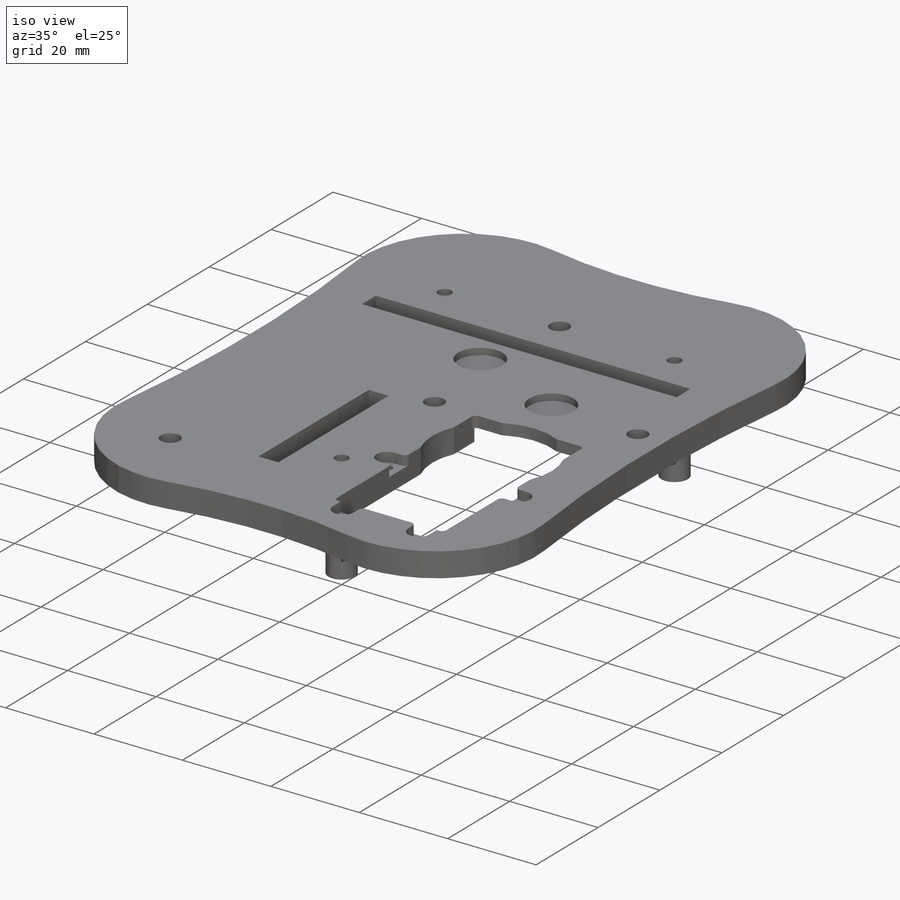
[diagram: iso view]
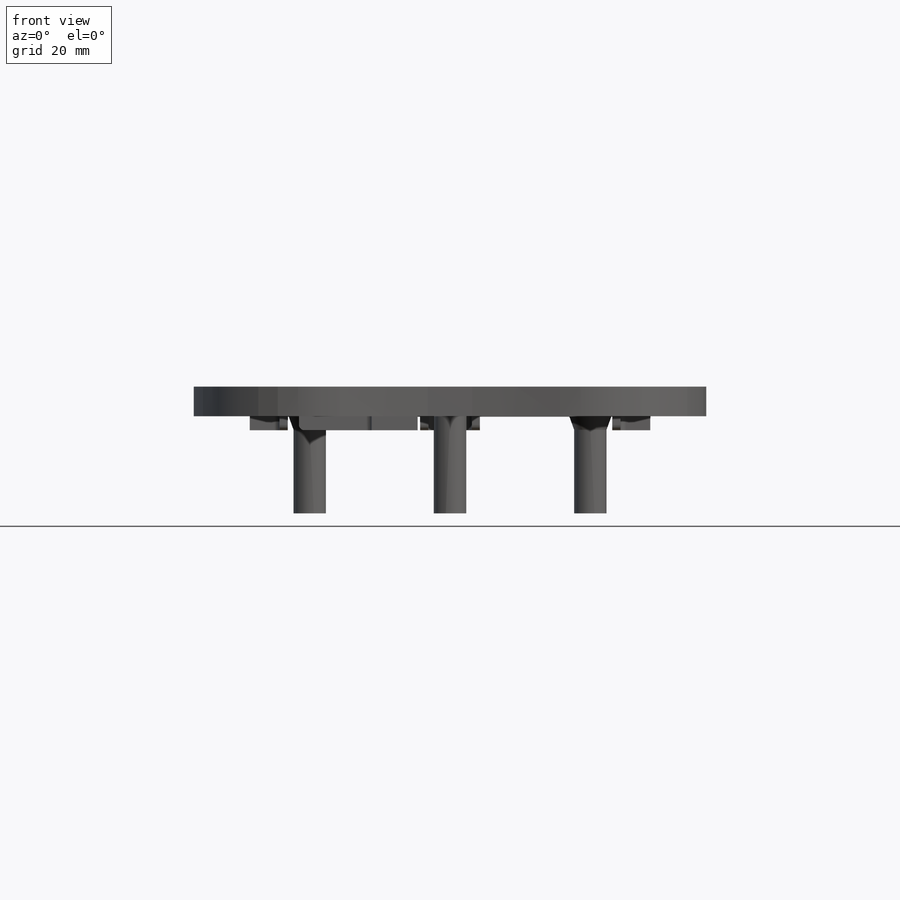
[diagram: front view]
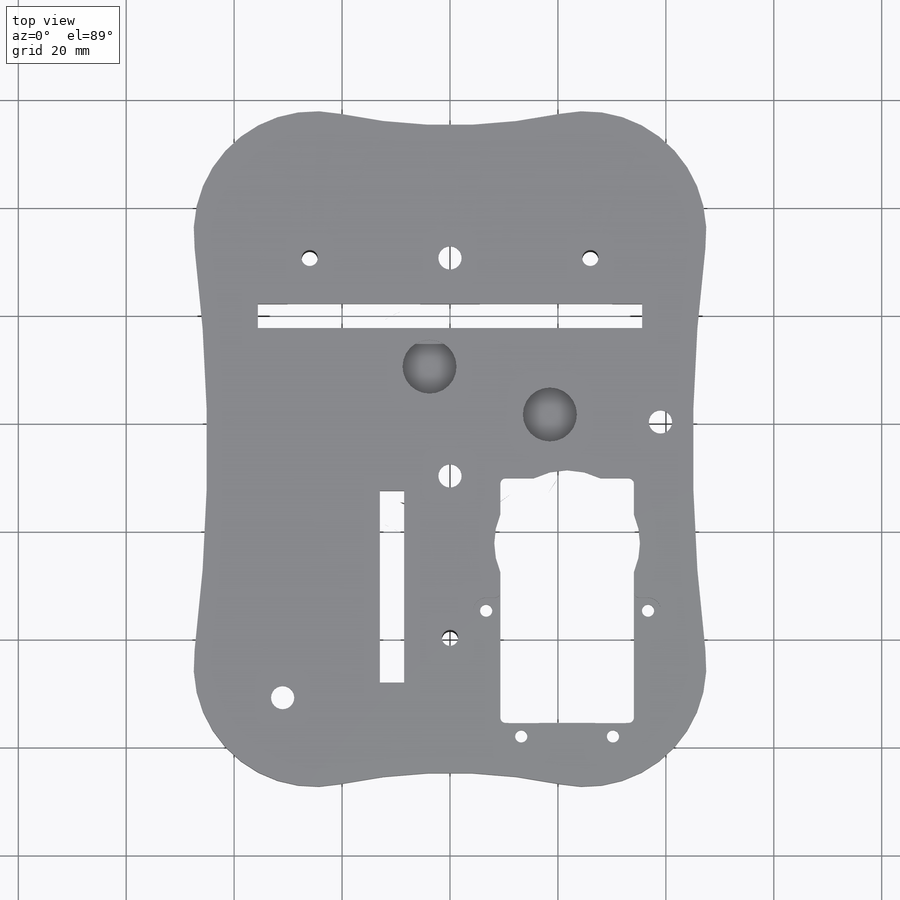
[diagram: top view]
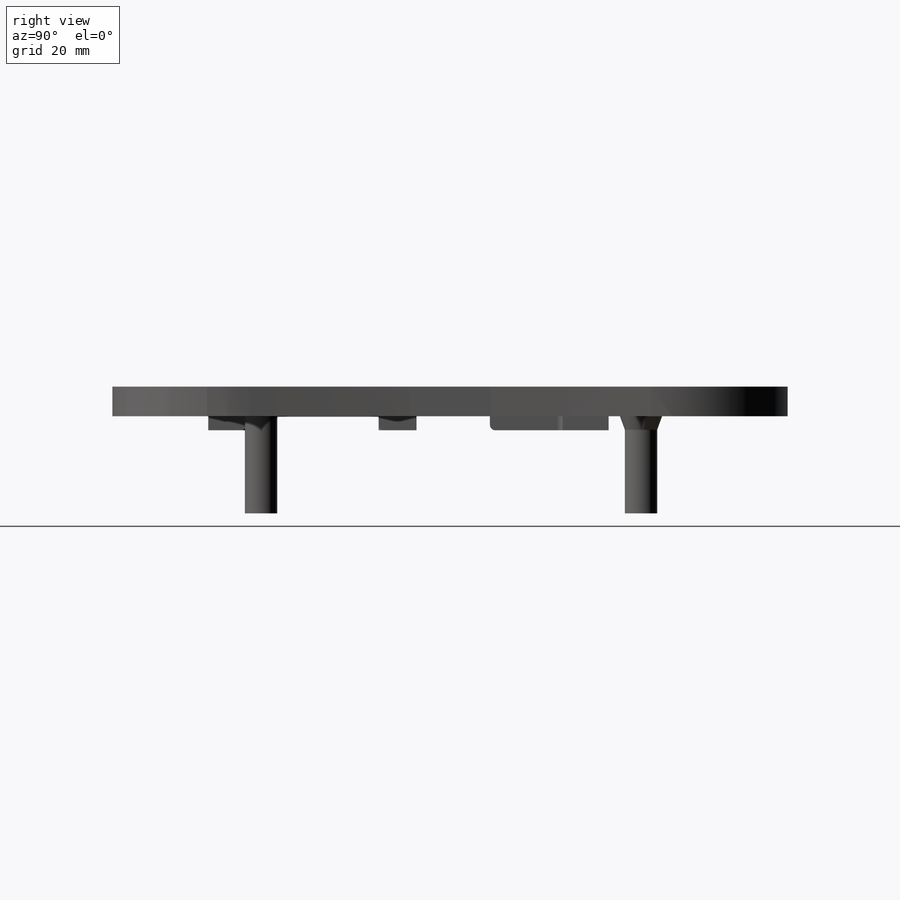
[diagram: right view]
SOLIDWORKS PART (.sldprt)
format: sldprt  version: not decoded by parser v0  size: 977,920 bytes
history: native  units: mm
features: sketch x18, extrude x8, cut_extrude x6, hole x2, fillet x2, material x1, chamfer x1 + 1 further entry (+17 scaffold rows collapsed; 3 parser-record rows omitted)
feature tree (59):
  scaffold x17  (default folders/planes/origin — collapsed)
  material  "ABS"
  "a_base_o"
  parser-record x3  (decoder bookkeeping rows leaked as tree rows — omitted from the tree; the rows remain in map.json)
  sketch  "Sketch1"  dims[D1=36.0mm D2=24.0mm D5=10.0mm D3=7.5mm D4=3.2mm]
  cut_extrude  "Gear Mounting Holes"  [1 undecoded]
  sketch  "Sketch2"  dims[D1=0.0mm]
  extrude  "Base Extension"  Depth=1mm
  sketch  "Sketch3"  dims[D1=8.5mm D2=4.5mm D3=71.2mm D4=35.6mm D5=8.5mm D6=9.5mm]
  cut_extrude  "Dynamixel Mounting Slots"  [1 undecoded]
  sketch  "Sketch4"  dims[D1=2.5mm D2=15.0mm D3=24.55mm D4=5.525mm D5=3.0mm D6=3.0mm D7=3.0mm]
  extrude  "Dynamixel Mounting Platforms"  Depth=5.6mm
  sketch  "Sketch5"  dims[D1=1.5mm D2=1.5mm D3=1.5mm D4=1.5mm D5=1.5mm]
  extrude  "Dynamixel Mounting Walls"  Depth=2.5mm
  sketch  "Sketch6"  dims[D4=1.0mm D1=45.35mm D2=24.75mm D3=12.0mm D5=30.0mm D6=4.5mm D7=17.0mm D8=17.0mm D9=17.0mm D10=35.8mm]
  cut_extrude  "Gear Dynamixel Mounting Holes"  [1 undecoded]
  sketch  "Sketch7"  dims[c1.D1=18.0mm c1.D2=~6.433815mm c2.D2=120.0deg]
  extrude  "Gear Dynamixel Mounting Platforms"  Depth=4mm
  hole  "#8 Clearance Hole1"  Diameter=4.3053mm Depth=26.4mm
  sketch  "Sketch9"
  sketch  "Sketch8"  dims[hole-wizard template sketch: 47 standard entries collapsed; hole parameters kept: c15.Hole Depth=26.4mm c15.D3=~14.816244mm c15.Drill Angle=118.0deg]
  hole  "CBORE for #2 Socket Head Cap Screw1"  Diameter=2.2606mm Depth=8.1mm
  sketch  "Sketch12"
  sketch  "Sketch11"  dims[hole-wizard template sketch: 41 standard entries collapsed; hole parameters kept: c12.Thru Hole Dia.=2.2606mm c12.Thru Hole Depth=8.1mm c12.C'Bore Dia.=4.7625mm c12.C'Bore Depth=2.1844mm]
  sketch  "Sketch13"
  cut_extrude  "CBORE Cleanup"  [1 undecoded]
  fillet  "Contouring"  Radius=1mm
  sketch  "Sketch14"  dims[D2=27.0mm D1=12.0mm]
  cut_extrude  "Gear Clearance"  [1 undecoded]
  sketch  "Sketch16"  dims[D1=0.0mm D2=5.0mm]
  extrude  "Outer Brim"  [1 undecoded]
  sketch  "Sketch17"  dims[D1=0.0mm]
  extrude  "Outer Brim Filler"  [1 undecoded]
  sketch  "Sketch18"  dims[D1=6.8mm]
  cut_extrude  "Clearance - Post"  [1 undecoded]
  sketch  "Sketch21"  dims[D1=1.5mm]
  extrude  "Tendon Posts"  Depth=21mm
  chamfer  "Tendon Post Chamfer"  Distance=2mm Angle=70deg
  sketch  "Sketch22"
  extrude  "Back Tendon Post Base"  [1 undecoded]
  fillet  "Fillet1"  Radius=1mm
decode coverage: 24 of 37 modeling features carry decoded parameters; 1 rows unclassified (native names shown)
note: ~ marks probable driven/reference dimensions
note: 9 parameter values undecoded
summary: no parameter record found for 9 features
note: suppression state not decoded; provenance and decode notes live in map.json
